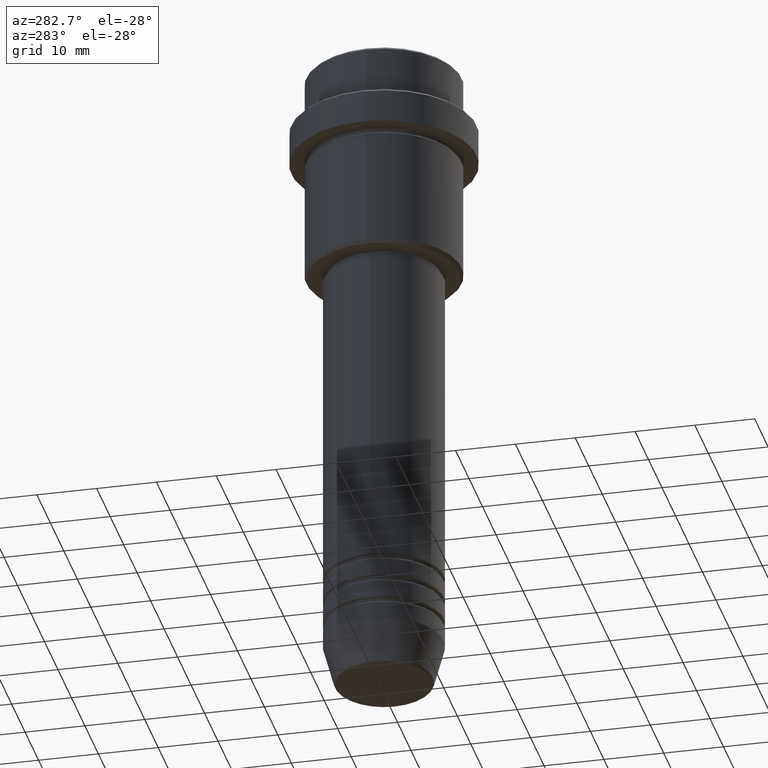
[diagram: clean part render]
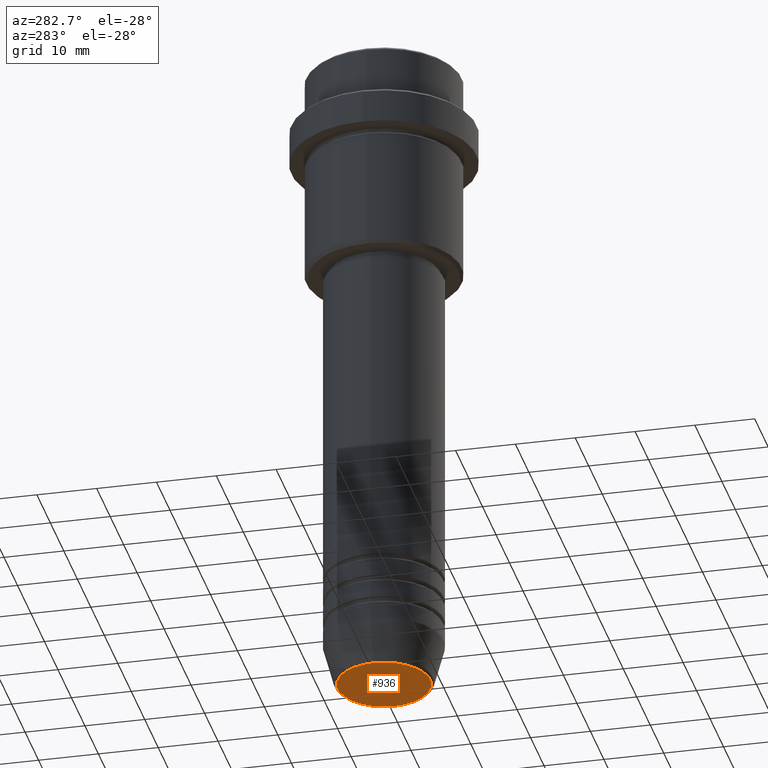
[diagram: same view with one face highlighted and labeled with its STEP entity id]
A machine part, auxiliary view. The second image highlights one B-rep face of the part: STEP entity #936.
In plain terms, the highlighted planar face has unit normal (0, -0, 1).
Its self-contained STEP definition (entity closure, byte-faithful):
#7 = PLANE ( 'NONE',  #200 ) ;
#105 = ORIENTED_EDGE ( 'NONE', *, *, #862, .T. ) ;
#110 = DIRECTION ( 'NONE',  ( 1.000000000000000000, 0.000000000000000000, 0.000000000000000000 ) ) ;
#192 = CARTESIAN_POINT ( 'NONE',  ( 0.000000000000000000, 0.000000000000000000, -110.9999999999999858 ) ) ;
#200 = AXIS2_PLACEMENT_3D ( 'NONE', #349, #1310, #768 ) ;
#288 = CARTESIAN_POINT ( 'NONE',  ( -7.740692158992658278, 9.775343368540041107E-16, -110.9999999999999858 ) ) ;
#304 = DIRECTION ( 'NONE',  ( 0.000000000000000000, 0.000000000000000000, -1.000000000000000000 ) ) ;
#349 = CARTESIAN_POINT ( 'NONE',  ( 0.000000000000000000, 0.000000000000000000, -110.9999999999999858 ) ) ;
#478 = ORIENTED_EDGE ( 'NONE', *, *, #865, .T. ) ;
#581 = CIRCLE ( 'NONE', #602, 7.740692158992658278 ) ;
#602 = AXIS2_PLACEMENT_3D ( 'NONE', #1290, #304, #734 ) ;
#664 = CIRCLE ( 'NONE', #702, 7.740692158992658278 ) ;
#676 = DIRECTION ( 'NONE',  ( 0.000000000000000000, 0.000000000000000000, -1.000000000000000000 ) ) ;
#702 = AXIS2_PLACEMENT_3D ( 'NONE', #192, #676, #110 ) ;
#718 = VERTEX_POINT ( 'NONE', #1250 ) ;
#734 = DIRECTION ( 'NONE',  ( 1.000000000000000000, 0.000000000000000000, 0.000000000000000000 ) ) ;
#768 = DIRECTION ( 'NONE',  ( 1.000000000000000000, 0.000000000000000000, 0.000000000000000000 ) ) ;
#862 = EDGE_CURVE ( 'NONE', #718, #1313, #581, .T. ) ;
#865 = EDGE_CURVE ( 'NONE', #1313, #718, #664, .T. ) ;
#936 = ADVANCED_FACE ( 'NONE', ( #1329 ), #7, .F. ) ;
#1250 = CARTESIAN_POINT ( 'NONE',  ( 7.740692158992658278, 0.000000000000000000, -110.9999999999999858 ) ) ;
#1267 = EDGE_LOOP ( 'NONE', ( #105, #478 ) ) ;
#1290 = CARTESIAN_POINT ( 'NONE',  ( 0.000000000000000000, 0.000000000000000000, -110.9999999999999858 ) ) ;
#1310 = DIRECTION ( 'NONE',  ( 0.000000000000000000, -0.000000000000000000, 1.000000000000000000 ) ) ;
#1313 = VERTEX_POINT ( 'NONE', #288 ) ;
#1329 = FACE_OUTER_BOUND ( 'NONE', #1267, .T. ) ;